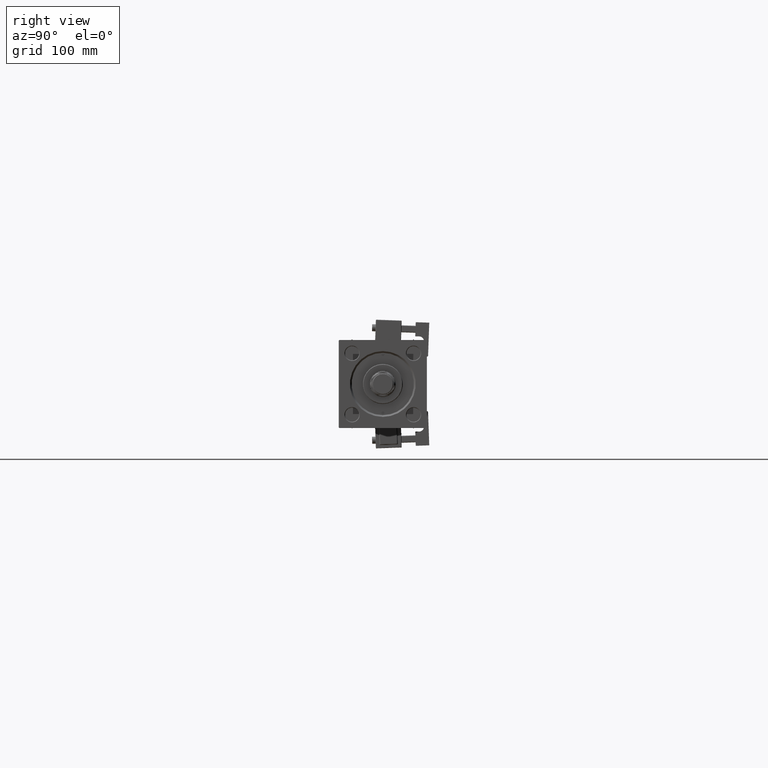
[diagram: clean part render]
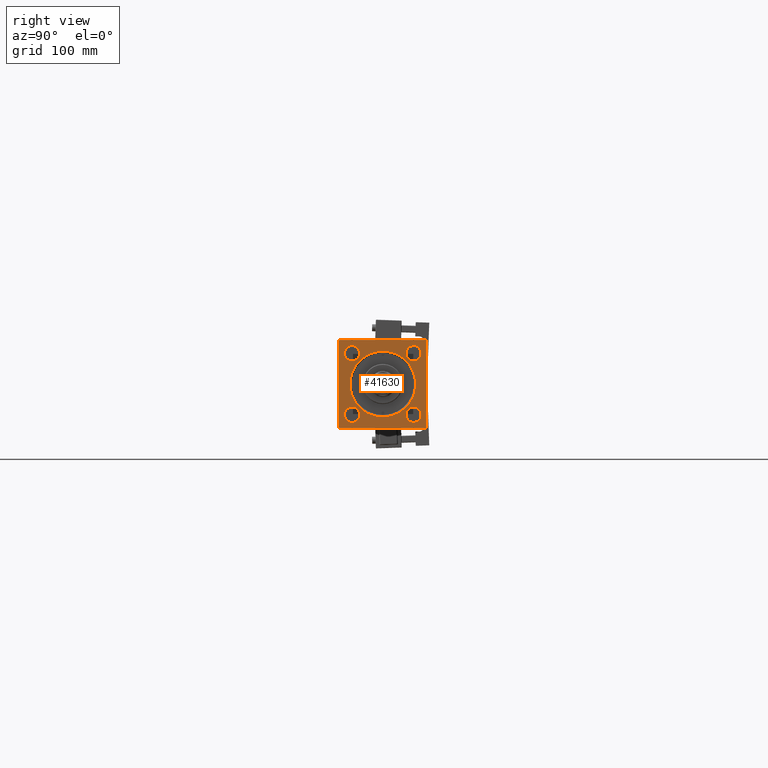
[diagram: same view with one face highlighted and labeled with its STEP entity id]
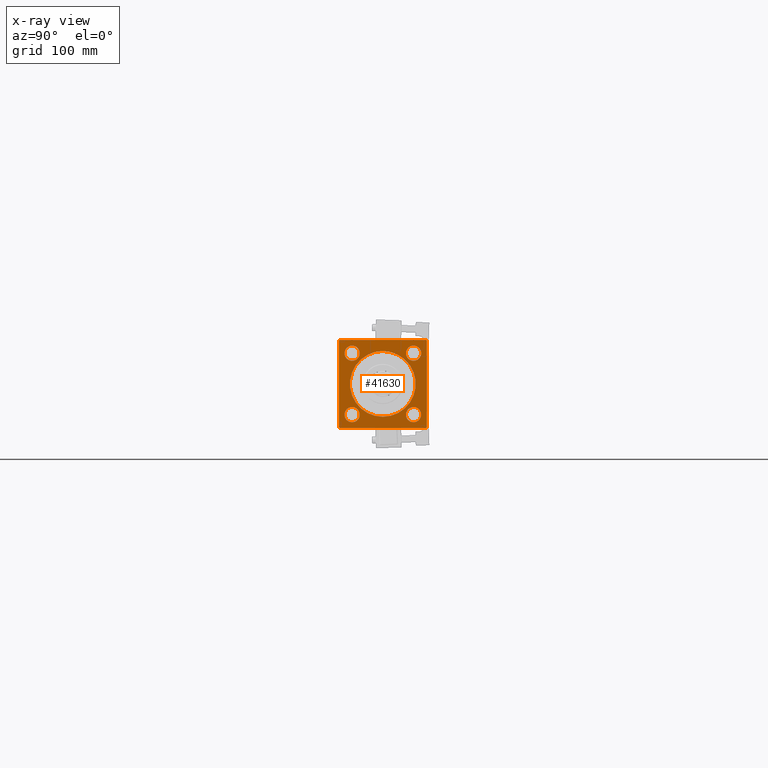
[diagram: x-ray of the same camera — body ghosted, the highlighted face saturated]
A machine part, right view. The second image highlights one B-rep face of the part: STEP entity #41630.
The next image is the same camera in x-ray: the body ghosted, the highlighted face saturated — about 0% of this face is hidden behind the body in this view.
In plain terms, the highlighted planar face has unit normal (-1, 0, 0).
Its self-contained STEP definition (entity closure, byte-faithful):
#126 = ORIENTED_EDGE ( 'NONE', *, *, #50712, .T. ) ;
#675 = AXIS2_PLACEMENT_3D ( 'NONE', #21990, #52118, #51853 ) ;
#921 = ORIENTED_EDGE ( 'NONE', *, *, #27557, .F. ) ;
#1135 = ORIENTED_EDGE ( 'NONE', *, *, #4286, .T. ) ;
#1250 = EDGE_LOOP ( 'NONE', ( #28086, #46446 ) ) ;
#1510 = ORIENTED_EDGE ( 'NONE', *, *, #29391, .T. ) ;
#1521 = FACE_BOUND ( 'NONE', #23087, .T. ) ;
#2273 = DIRECTION ( 'NONE',  ( 0.000000000000000000, 0.000000000000000000, 1.000000000000000000 ) ) ;
#2320 = FACE_BOUND ( 'NONE', #19093, .T. ) ;
#2663 = CARTESIAN_POINT ( 'NONE',  ( 534.0000000000000000, -37.50000000000000000, 37.49999999999997868 ) ) ;
#2783 = CIRCLE ( 'NONE', #37826, 6.500000000000175859 ) ;
#4155 = DIRECTION ( 'NONE',  ( -1.000000000000000000, -0.000000000000000000, 0.000000000000000000 ) ) ;
#4248 = ORIENTED_EDGE ( 'NONE', *, *, #10218, .T. ) ;
#4267 = EDGE_CURVE ( 'NONE', #29617, #17008, #31634, .T. ) ;
#4286 = EDGE_CURVE ( 'NONE', #4652, #24876, #27005, .T. ) ;
#4652 = VERTEX_POINT ( 'NONE', #19506 ) ;
#4693 = DIRECTION ( 'NONE',  ( -1.000000000000000000, -0.000000000000000000, 0.000000000000000000 ) ) ;
#4923 = CARTESIAN_POINT ( 'NONE',  ( 534.0000000000000000, 26.14999999999999858, -19.64999999999983160 ) ) ;
#4955 = DIRECTION ( 'NONE',  ( 0.000000000000000000, 0.000000000000000000, 1.000000000000000000 ) ) ;
#5149 = VERTEX_POINT ( 'NONE', #48910 ) ;
#5566 = DIRECTION ( 'NONE',  ( 0.000000000000000000, 0.000000000000000000, -1.000000000000000000 ) ) ;
#5740 = CARTESIAN_POINT ( 'NONE',  ( 534.0000000000000000, 37.50000000000000000, 36.99999999999999289 ) ) ;
#5756 = DIRECTION ( 'NONE',  ( 0.000000000000000000, -1.000000000000000000, 0.000000000000000000 ) ) ;
#5896 = DIRECTION ( 'NONE',  ( 0.000000000000000000, 0.000000000000000000, 1.000000000000000000 ) ) ;
#5970 = VERTEX_POINT ( 'NONE', #9060 ) ;
#6171 = CIRCLE ( 'NONE', #45608, 28.00000000000008171 ) ;
#6290 = VECTOR ( 'NONE', #36960, 999.9999999999998863 ) ;
#6491 = ORIENTED_EDGE ( 'NONE', *, *, #26578, .F. ) ;
#6977 = FACE_OUTER_BOUND ( 'NONE', #46387, .T. ) ;
#7606 = CIRCLE ( 'NONE', #20756, 28.00000000000008171 ) ;
#7639 = VECTOR ( 'NONE', #5566, 1000.000000000000000 ) ;
#7855 = EDGE_CURVE ( 'NONE', #17008, #28272, #20694, .T. ) ;
#7930 = CARTESIAN_POINT ( 'NONE',  ( 534.0000000000000000, -26.15000000000000213, -26.15000000000000213 ) ) ;
#8017 = VERTEX_POINT ( 'NONE', #11021 ) ;
#8284 = CIRCLE ( 'NONE', #45948, 6.500000000000175859 ) ;
#9060 = CARTESIAN_POINT ( 'NONE',  ( 534.0000000000000000, -37.50000000000000711, -37.00000000000006395 ) ) ;
#9260 = CARTESIAN_POINT ( 'NONE',  ( 534.0000000000000000, 37.00000000000000000, 37.49999999999999289 ) ) ;
#9805 = AXIS2_PLACEMENT_3D ( 'NONE', #31674, #35251, #5896 ) ;
#9996 = FACE_BOUND ( 'NONE', #23763, .T. ) ;
#9999 = AXIS2_PLACEMENT_3D ( 'NONE', #49689, #4155, #54055 ) ;
#10218 = EDGE_CURVE ( 'NONE', #45865, #28002, #40272, .T. ) ;
#10298 = ORIENTED_EDGE ( 'NONE', *, *, #4267, .T. ) ;
#10477 = CARTESIAN_POINT ( 'NONE',  ( 534.0000000000000000, 3.429011037612599137E-15, 28.00000000000008171 ) ) ;
#10558 = VERTEX_POINT ( 'NONE', #27815 ) ;
#10735 = DIRECTION ( 'NONE',  ( -1.000000000000000000, -0.000000000000000000, 0.000000000000000000 ) ) ;
#10765 = DIRECTION ( 'NONE',  ( 0.000000000000000000, 0.000000000000000000, 1.000000000000000000 ) ) ;
#10821 = ORIENTED_EDGE ( 'NONE', *, *, #49981, .T. ) ;
#11021 = CARTESIAN_POINT ( 'NONE',  ( 534.0000000000000000, 37.00000000000000000, -37.50000000000000000 ) ) ;
#11548 = CARTESIAN_POINT ( 'NONE',  ( 534.0000000000000000, 26.14999999999999858, -26.15000000000000213 ) ) ;
#11985 = DIRECTION ( 'NONE',  ( -0.000000000000000000, -0.7071067811865474617, -0.7071067811865474617 ) ) ;
#12986 = VECTOR ( 'NONE', #32516, 1000.000000000000000 ) ;
#13704 = DIRECTION ( 'NONE',  ( -1.000000000000000000, -0.000000000000000000, 0.000000000000000000 ) ) ;
#13963 = VECTOR ( 'NONE', #11985, 1000.000000000000114 ) ;
#14757 = CARTESIAN_POINT ( 'NONE',  ( 534.0000000000000000, -26.14999999999999147, 32.65000000000016200 ) ) ;
#14923 = FACE_BOUND ( 'NONE', #1250, .T. ) ;
#15136 = ORIENTED_EDGE ( 'NONE', *, *, #38875, .T. ) ;
#15268 = CARTESIAN_POINT ( 'NONE',  ( 534.0000000000000000, 26.14999999999999858, 32.65000000000017621 ) ) ;
#15437 = DIRECTION ( 'NONE',  ( -1.000000000000000000, -0.000000000000000000, 0.000000000000000000 ) ) ;
#15590 = ORIENTED_EDGE ( 'NONE', *, *, #38945, .T. ) ;
#15814 = LINE ( 'NONE', #2663, #40808 ) ;
#15967 = ORIENTED_EDGE ( 'NONE', *, *, #53000, .T. ) ;
#16460 = CARTESIAN_POINT ( 'NONE',  ( 534.0000000000000000, -26.15000000000000213, -26.15000000000000213 ) ) ;
#16609 = ORIENTED_EDGE ( 'NONE', *, *, #7855, .T. ) ;
#16757 = CARTESIAN_POINT ( 'NONE',  ( 534.0000000000000000, -26.14999999999999147, 26.14999999999999503 ) ) ;
#16960 = DIRECTION ( 'NONE',  ( 0.000000000000000000, 0.000000000000000000, 1.000000000000000000 ) ) ;
#17008 = VERTEX_POINT ( 'NONE', #9260 ) ;
#18867 = VECTOR ( 'NONE', #5756, 1000.000000000000000 ) ;
#19093 = EDGE_LOOP ( 'NONE', ( #126, #1510 ) ) ;
#19506 = CARTESIAN_POINT ( 'NONE',  ( 534.0000000000000000, 26.14999999999999858, 19.64999999999982805 ) ) ;
#19543 = DIRECTION ( 'NONE',  ( 0.000000000000000000, 0.000000000000000000, 1.000000000000000000 ) ) ;
#19595 = VERTEX_POINT ( 'NONE', #22237 ) ;
#20694 = LINE ( 'NONE', #36906, #12986 ) ;
#20727 = CARTESIAN_POINT ( 'NONE',  ( 534.0000000000000000, -37.50000000000000000, 36.99999999999997868 ) ) ;
#20756 = AXIS2_PLACEMENT_3D ( 'NONE', #39867, #43426, #2273 ) ;
#20884 = DIRECTION ( 'NONE',  ( 0.000000000000000000, 0.000000000000000000, 1.000000000000000000 ) ) ;
#21990 = CARTESIAN_POINT ( 'NONE',  ( 534.0000000000000000, 26.14999999999999858, 26.15000000000000213 ) ) ;
#22217 = VERTEX_POINT ( 'NONE', #40563 ) ;
#22237 = CARTESIAN_POINT ( 'NONE',  ( 534.0000000000000000, 26.14999999999999858, -32.65000000000017621 ) ) ;
#23087 = EDGE_LOOP ( 'NONE', ( #15136, #15967 ) ) ;
#23602 = EDGE_CURVE ( 'NONE', #44636, #19595, #31050, .T. ) ;
#23763 = EDGE_LOOP ( 'NONE', ( #1135, #42187 ) ) ;
#23923 = CARTESIAN_POINT ( 'NONE',  ( 534.0000000000000000, -26.14999999999999147, 19.64999999999982805 ) ) ;
#24876 = VERTEX_POINT ( 'NONE', #15268 ) ;
#24892 = LINE ( 'NONE', #41629, #40265 ) ;
#24974 = DIRECTION ( 'NONE',  ( 0.000000000000000000, 0.000000000000000000, 1.000000000000000000 ) ) ;
#26065 = CARTESIAN_POINT ( 'NONE',  ( 534.0000000000000000, 0.000000000000000000, -28.00000000000008171 ) ) ;
#26099 = AXIS2_PLACEMENT_3D ( 'NONE', #16460, #41706, #24974 ) ;
#26100 = VERTEX_POINT ( 'NONE', #20727 ) ;
#26397 = CARTESIAN_POINT ( 'NONE',  ( 534.0000000000000000, 37.50000000000000000, 37.49999999999999289 ) ) ;
#26578 = EDGE_CURVE ( 'NONE', #8017, #10558, #34832, .T. ) ;
#26918 = CIRCLE ( 'NONE', #675, 6.500000000000175859 ) ;
#27005 = CIRCLE ( 'NONE', #48046, 6.500000000000175859 ) ;
#27060 = DIRECTION ( 'NONE',  ( 0.000000000000000000, -9.251858538542972814E-17, -1.000000000000000000 ) ) ;
#27557 = EDGE_CURVE ( 'NONE', #29617, #31597, #30256, .T. ) ;
#27815 = CARTESIAN_POINT ( 'NONE',  ( 534.0000000000000000, -37.00000000000007105, -37.50000000000000000 ) ) ;
#27843 = ORIENTED_EDGE ( 'NONE', *, *, #32838, .T. ) ;
#28002 = VERTEX_POINT ( 'NONE', #14757 ) ;
#28086 = ORIENTED_EDGE ( 'NONE', *, *, #40696, .T. ) ;
#28165 = CARTESIAN_POINT ( 'NONE',  ( 534.0000000000000000, 37.50000000000000000, -36.99999999999999289 ) ) ;
#28272 = VERTEX_POINT ( 'NONE', #45866 ) ;
#28330 = EDGE_CURVE ( 'NONE', #24876, #4652, #26918, .T. ) ;
#29391 = EDGE_CURVE ( 'NONE', #22217, #5149, #30498, .T. ) ;
#29617 = VERTEX_POINT ( 'NONE', #5740 ) ;
#30256 = LINE ( 'NONE', #26397, #7639 ) ;
#30498 = CIRCLE ( 'NONE', #26099, 6.500000000000175859 ) ;
#31050 = CIRCLE ( 'NONE', #9999, 6.500000000000175859 ) ;
#31176 = VERTEX_POINT ( 'NONE', #10477 ) ;
#31597 = VERTEX_POINT ( 'NONE', #37311 ) ;
#31634 = LINE ( 'NONE', #52452, #52404 ) ;
#31674 = CARTESIAN_POINT ( 'NONE',  ( 534.0000000000000000, 0.000000000000000000, 0.000000000000000000 ) ) ;
#32516 = DIRECTION ( 'NONE',  ( 0.000000000000000000, -1.000000000000000000, -1.850371707708594316E-16 ) ) ;
#32568 = LINE ( 'NONE', #28165, #6290 ) ;
#32719 = EDGE_CURVE ( 'NONE', #28272, #26100, #40564, .T. ) ;
#32838 = EDGE_CURVE ( 'NONE', #5970, #10558, #24892, .T. ) ;
#34388 = ORIENTED_EDGE ( 'NONE', *, *, #32719, .T. ) ;
#34832 = LINE ( 'NONE', #43590, #18867 ) ;
#35251 = DIRECTION ( 'NONE',  ( -1.000000000000000000, -0.000000000000000000, 0.000000000000000000 ) ) ;
#36537 = DIRECTION ( 'NONE',  ( 0.000000000000000000, 0.000000000000000000, 1.000000000000000000 ) ) ;
#36863 = AXIS2_PLACEMENT_3D ( 'NONE', #16757, #4693, #20884 ) ;
#36906 = CARTESIAN_POINT ( 'NONE',  ( 534.0000000000000000, 37.50000000000000000, 37.49999999999999289 ) ) ;
#36960 = DIRECTION ( 'NONE',  ( -0.000000000000000000, 0.7071067811865425767, 0.7071067811865525687 ) ) ;
#37311 = CARTESIAN_POINT ( 'NONE',  ( 534.0000000000000000, 37.50000000000000000, -36.99999999999999289 ) ) ;
#37826 = AXIS2_PLACEMENT_3D ( 'NONE', #11548, #44760, #36537 ) ;
#38875 = EDGE_CURVE ( 'NONE', #42902, #31176, #6171, .T. ) ;
#38945 = EDGE_CURVE ( 'NONE', #28002, #45865, #42986, .T. ) ;
#39867 = CARTESIAN_POINT ( 'NONE',  ( 534.0000000000000000, 0.000000000000000000, 0.000000000000000000 ) ) ;
#39917 = PLANE ( 'NONE',  #9805 ) ;
#40265 = VECTOR ( 'NONE', #54206, 1000.000000000000114 ) ;
#40272 = CIRCLE ( 'NONE', #42879, 6.500000000000168754 ) ;
#40563 = CARTESIAN_POINT ( 'NONE',  ( 534.0000000000000000, -26.15000000000000213, -19.64999999999983160 ) ) ;
#40564 = LINE ( 'NONE', #53141, #13963 ) ;
#40696 = EDGE_CURVE ( 'NONE', #19595, #44636, #2783, .T. ) ;
#40808 = VECTOR ( 'NONE', #27060, 1000.000000000000000 ) ;
#41445 = EDGE_CURVE ( 'NONE', #8017, #31597, #32568, .T. ) ;
#41630 = ADVANCED_FACE ( 'NONE', ( #9996, #43471, #2320, #14923, #1521, #6977 ), #39917, .F. ) ;
#41629 = CARTESIAN_POINT ( 'NONE',  ( 534.0000000000000000, -37.00000000000007105, -37.50000000000000000 ) ) ;
#41706 = DIRECTION ( 'NONE',  ( -1.000000000000000000, -0.000000000000000000, 0.000000000000000000 ) ) ;
#42024 = ORIENTED_EDGE ( 'NONE', *, *, #41445, .T. ) ;
#42187 = ORIENTED_EDGE ( 'NONE', *, *, #28330, .T. ) ;
#42532 = CARTESIAN_POINT ( 'NONE',  ( 534.0000000000000000, -26.14999999999999147, 26.14999999999999503 ) ) ;
#42879 = AXIS2_PLACEMENT_3D ( 'NONE', #42532, #13704, #4955 ) ;
#42902 = VERTEX_POINT ( 'NONE', #26065 ) ;
#42986 = CIRCLE ( 'NONE', #36863, 6.500000000000168754 ) ;
#43426 = DIRECTION ( 'NONE',  ( -1.000000000000000000, -0.000000000000000000, 0.000000000000000000 ) ) ;
#43471 = FACE_BOUND ( 'NONE', #51831, .T. ) ;
#43590 = CARTESIAN_POINT ( 'NONE',  ( 534.0000000000000000, 37.50000000000000000, -37.50000000000000000 ) ) ;
#44636 = VERTEX_POINT ( 'NONE', #4923 ) ;
#44760 = DIRECTION ( 'NONE',  ( -1.000000000000000000, -0.000000000000000000, 0.000000000000000000 ) ) ;
#45608 = AXIS2_PLACEMENT_3D ( 'NONE', #52696, #10735, #19543 ) ;
#45865 = VERTEX_POINT ( 'NONE', #23923 ) ;
#45866 = CARTESIAN_POINT ( 'NONE',  ( 534.0000000000000000, -37.00000000000000000, 37.49999999999997868 ) ) ;
#45948 = AXIS2_PLACEMENT_3D ( 'NONE', #7930, #49616, #16960 ) ;
#46387 = EDGE_LOOP ( 'NONE', ( #10821, #27843, #6491, #42024, #921, #10298, #16609, #34388 ) ) ;
#46446 = ORIENTED_EDGE ( 'NONE', *, *, #23602, .T. ) ;
#48046 = AXIS2_PLACEMENT_3D ( 'NONE', #53549, #15437, #10765 ) ;
#48359 = DIRECTION ( 'NONE',  ( 0.000000000000000000, -0.7071067811865474617, 0.7071067811865474617 ) ) ;
#48910 = CARTESIAN_POINT ( 'NONE',  ( 534.0000000000000000, -26.15000000000000213, -32.65000000000017621 ) ) ;
#49616 = DIRECTION ( 'NONE',  ( -1.000000000000000000, -0.000000000000000000, 0.000000000000000000 ) ) ;
#49689 = CARTESIAN_POINT ( 'NONE',  ( 534.0000000000000000, 26.14999999999999858, -26.15000000000000213 ) ) ;
#49981 = EDGE_CURVE ( 'NONE', #26100, #5970, #15814, .T. ) ;
#50712 = EDGE_CURVE ( 'NONE', #5149, #22217, #8284, .T. ) ;
#51831 = EDGE_LOOP ( 'NONE', ( #4248, #15590 ) ) ;
#51853 = DIRECTION ( 'NONE',  ( 0.000000000000000000, 0.000000000000000000, 1.000000000000000000 ) ) ;
#52118 = DIRECTION ( 'NONE',  ( -1.000000000000000000, -0.000000000000000000, 0.000000000000000000 ) ) ;
#52404 = VECTOR ( 'NONE', #48359, 1000.000000000000114 ) ;
#52452 = CARTESIAN_POINT ( 'NONE',  ( 534.0000000000000000, 37.00000000000000000, 37.49999999999999289 ) ) ;
#52696 = CARTESIAN_POINT ( 'NONE',  ( 534.0000000000000000, 0.000000000000000000, 0.000000000000000000 ) ) ;
#53000 = EDGE_CURVE ( 'NONE', #31176, #42902, #7606, .T. ) ;
#53141 = CARTESIAN_POINT ( 'NONE',  ( 534.0000000000000000, -37.50000000000000000, 36.99999999999997868 ) ) ;
#53549 = CARTESIAN_POINT ( 'NONE',  ( 534.0000000000000000, 26.14999999999999858, 26.15000000000000213 ) ) ;
#54055 = DIRECTION ( 'NONE',  ( 0.000000000000000000, 0.000000000000000000, 1.000000000000000000 ) ) ;
#54206 = DIRECTION ( 'NONE',  ( 0.000000000000000000, 0.7071067811865474617, -0.7071067811865474617 ) ) ;